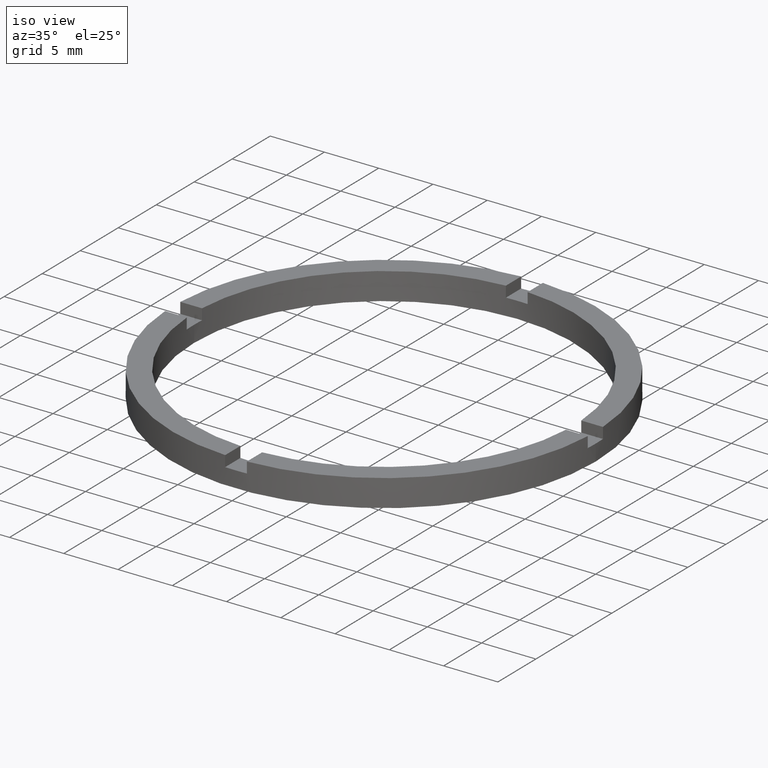
[diagram: clean part render]
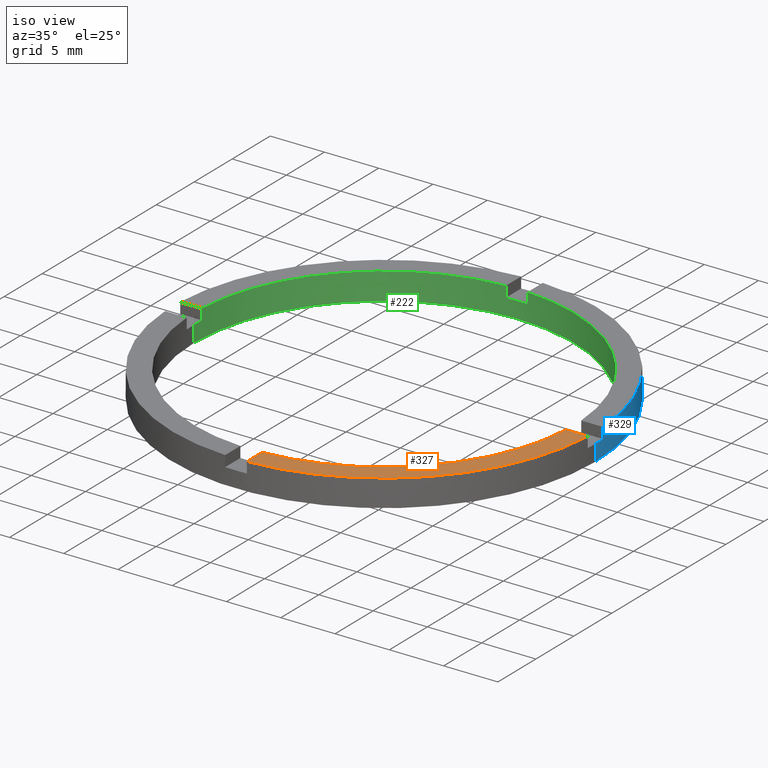
[diagram: same view with three faces highlighted in distinct colors, each labeled with its STEP entity id]
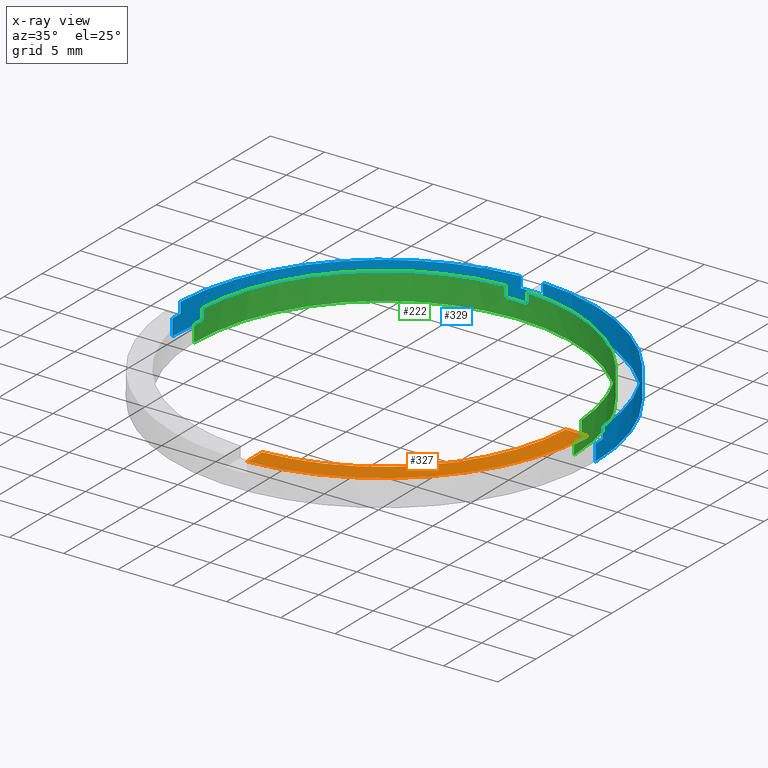
[diagram: x-ray of the same camera — body ghosted, the three highlighted faces saturated]
A machine part, iso view with three faces highlighted in distinct colors.
The next image is the same camera in x-ray (body ghosted, the three faces saturated) — at least one of them is partly hidden behind the body in this view.
Their STEP definitions:

[orange] entity #327 — the highlighted planar face has unit normal (0, 0, 1).
#36 = FACE_OUTER_BOUND ( 'NONE', #448, .T. ) ;
#55 = ORIENTED_EDGE ( 'NONE', *, *, #530, .F. ) ;
#99 = CARTESIAN_POINT ( 'NONE',  ( 17.47140520965614385, -1.000000000000158762, 2.500000000000000000 ) ) ;
#117 = CARTESIAN_POINT ( 'NONE',  ( 0.000000000000000000, 0.000000000000000000, 2.500000000000000000 ) ) ;
#120 = DIRECTION ( 'NONE',  ( 0.000000000000000000, 0.000000000000000000, 1.000000000000000000 ) ) ;
#142 = VECTOR ( 'NONE', #215, 1000.000000000000000 ) ;
#161 = VECTOR ( 'NONE', #230, 1000.000000000000000 ) ;
#163 = CIRCLE ( 'NONE', #752, 19.50000000000000000 ) ;
#178 = VERTEX_POINT ( 'NONE', #756 ) ;
#208 = CARTESIAN_POINT ( 'NONE',  ( 0.9999999999998369082, -9.500000000000179412, 2.500000000000000000 ) ) ;
#215 = DIRECTION ( 'NONE',  ( -1.301042606982605074E-16, 1.000000000000000000, -0.000000000000000000 ) ) ;
#230 = DIRECTION ( 'NONE',  ( 1.000000000000000000, 4.336808689942017120E-17, 0.000000000000000000 ) ) ;
#235 = VERTEX_POINT ( 'NONE', #375 ) ;
#259 = AXIS2_PLACEMENT_3D ( 'NONE', #742, #558, #549 ) ;
#298 = AXIS2_PLACEMENT_3D ( 'NONE', #117, #349, #724 ) ;
#327 = ADVANCED_FACE ( 'NONE', ( #36 ), #605, .T. ) ;
#349 = DIRECTION ( 'NONE',  ( 0.000000000000000000, 0.000000000000000000, 1.000000000000000000 ) ) ;
#352 = CARTESIAN_POINT ( 'NONE',  ( 0.000000000000000000, 0.000000000000000000, 2.500000000000000000 ) ) ;
#358 = VERTEX_POINT ( 'NONE', #664 ) ;
#375 = CARTESIAN_POINT ( 'NONE',  ( 19.47434209415044037, -1.000000000000158540, 2.500000000000000000 ) ) ;
#437 = CIRCLE ( 'NONE', #259, 17.50000000000000355 ) ;
#440 = LINE ( 'NONE', #619, #161 ) ;
#448 = EDGE_LOOP ( 'NONE', ( #472, #55, #706, #646 ) ) ;
#469 = VERTEX_POINT ( 'NONE', #99 ) ;
#472 = ORIENTED_EDGE ( 'NONE', *, *, #587, .F. ) ;
#530 = EDGE_CURVE ( 'NONE', #178, #469, #437, .T. ) ;
#549 = DIRECTION ( 'NONE',  ( 1.000000000000000000, 0.000000000000000000, 0.000000000000000000 ) ) ;
#558 = DIRECTION ( 'NONE',  ( 0.000000000000000000, 0.000000000000000000, 1.000000000000000000 ) ) ;
#587 = EDGE_CURVE ( 'NONE', #469, #235, #440, .T. ) ;
#601 = EDGE_CURVE ( 'NONE', #358, #235, #163, .T. ) ;
#605 = PLANE ( 'NONE',  #298 ) ;
#619 = CARTESIAN_POINT ( 'NONE',  ( 9.499999999999994671, -1.000000000000158984, 2.500000000000000000 ) ) ;
#646 = ORIENTED_EDGE ( 'NONE', *, *, #601, .T. ) ;
#661 = DIRECTION ( 'NONE',  ( 1.000000000000000000, 0.000000000000000000, 0.000000000000000000 ) ) ;
#664 = CARTESIAN_POINT ( 'NONE',  ( 0.9999999999998377964, -19.47434209415045459, 2.500000000000000000 ) ) ;
#665 = LINE ( 'NONE', #208, #142 ) ;
#706 = ORIENTED_EDGE ( 'NONE', *, *, #745, .F. ) ;
#724 = DIRECTION ( 'NONE',  ( 1.000000000000000000, 0.000000000000000000, -0.000000000000000000 ) ) ;
#742 = CARTESIAN_POINT ( 'NONE',  ( 0.000000000000000000, 0.000000000000000000, 2.500000000000000000 ) ) ;
#745 = EDGE_CURVE ( 'NONE', #358, #178, #665, .T. ) ;
#752 = AXIS2_PLACEMENT_3D ( 'NONE', #352, #120, #661 ) ;
#756 = CARTESIAN_POINT ( 'NONE',  ( 0.9999999999998373523, -17.47140520965615806, 2.500000000000000000 ) ) ;

[blue] entity #329 — the highlighted cylindrical surface (partial cylindrical patch) has radius 19.5 mm, axis along (-0, -0, -1).
#1 = DIRECTION ( 'NONE',  ( 1.000000000000000000, 0.000000000000000000, 0.000000000000000000 ) ) ;
#3 = EDGE_CURVE ( 'NONE', #455, #92, #60, .T. ) ;
#8 = CARTESIAN_POINT ( 'NONE',  ( 19.50000000000000000, 2.388061258337338939E-15, 2.500000000000000000 ) ) ;
#9 = DIRECTION ( 'NONE',  ( 1.000000000000000000, 0.000000000000000000, 0.000000000000000000 ) ) ;
#16 = EDGE_CURVE ( 'NONE', #455, #639, #582, .T. ) ;
#24 = CARTESIAN_POINT ( 'NONE',  ( 19.47434209415045459, 0.9999999999998414602, 1.500000000000000000 ) ) ;
#25 = VECTOR ( 'NONE', #529, 1000.000000000000000 ) ;
#29 = AXIS2_PLACEMENT_3D ( 'NONE', #540, #491, #243 ) ;
#39 = LINE ( 'NONE', #74, #292 ) ;
#40 = LINE ( 'NONE', #94, #284 ) ;
#46 = CYLINDRICAL_SURFACE ( 'NONE', #452, 19.50000000000000000 ) ;
#50 = EDGE_CURVE ( 'NONE', #381, #517, #566, .T. ) ;
#53 = CARTESIAN_POINT ( 'NONE',  ( 0.9999999999999742428, 19.47434209415044393, 1.500000000000000000 ) ) ;
#60 = LINE ( 'NONE', #493, #317 ) ;
#62 = CARTESIAN_POINT ( 'NONE',  ( 0.000000000000000000, 0.000000000000000000, 1.500000000000000000 ) ) ;
#66 = CARTESIAN_POINT ( 'NONE',  ( 0.9999999999999742428, 19.47434209415044393, 2.500000000000000000 ) ) ;
#72 = DIRECTION ( 'NONE',  ( 1.000000000000000000, 0.000000000000000000, 0.000000000000000000 ) ) ;
#74 = CARTESIAN_POINT ( 'NONE',  ( -19.47434209415044748, 0.9999999999999756861, 2.500000000000000000 ) ) ;
#89 = DIRECTION ( 'NONE',  ( -0.000000000000000000, -0.000000000000000000, -1.000000000000000000 ) ) ;
#92 = VERTEX_POINT ( 'NONE', #394 ) ;
#94 = CARTESIAN_POINT ( 'NONE',  ( -19.50000000000000000, 0.000000000000000000, 2.500000000000000000 ) ) ;
#98 = EDGE_CURVE ( 'NONE', #212, #630, #562, .T. ) ;
#110 = EDGE_CURVE ( 'NONE', #254, #525, #286, .T. ) ;
#121 = CARTESIAN_POINT ( 'NONE',  ( -19.47434209415044748, 0.9999999999999756861, 1.500000000000000000 ) ) ;
#125 = AXIS2_PLACEMENT_3D ( 'NONE', #312, #391, #72 ) ;
#137 = ORIENTED_EDGE ( 'NONE', *, *, #485, .F. ) ;
#171 = CIRCLE ( 'NONE', #471, 19.50000000000000000 ) ;
#185 = DIRECTION ( 'NONE',  ( 0.000000000000000000, 0.000000000000000000, 1.000000000000000000 ) ) ;
#190 = ORIENTED_EDGE ( 'NONE', *, *, #3, .T. ) ;
#207 = ORIENTED_EDGE ( 'NONE', *, *, #221, .T. ) ;
#212 = VERTEX_POINT ( 'NONE', #368 ) ;
#221 = EDGE_CURVE ( 'NONE', #381, #639, #39, .T. ) ;
#225 = DIRECTION ( 'NONE',  ( -0.000000000000000000, -0.000000000000000000, -1.000000000000000000 ) ) ;
#229 = CARTESIAN_POINT ( 'NONE',  ( 0.000000000000000000, 0.000000000000000000, 2.500000000000000000 ) ) ;
#232 = DIRECTION ( 'NONE',  ( -0.000000000000000000, -0.000000000000000000, -1.000000000000000000 ) ) ;
#236 = EDGE_CURVE ( 'NONE', #715, #720, #564, .T. ) ;
#243 = DIRECTION ( 'NONE',  ( 1.000000000000000000, 0.000000000000000000, 0.000000000000000000 ) ) ;
#254 = VERTEX_POINT ( 'NONE', #53 ) ;
#255 = DIRECTION ( 'NONE',  ( 0.000000000000000000, 0.000000000000000000, 1.000000000000000000 ) ) ;
#284 = VECTOR ( 'NONE', #225, 1000.000000000000000 ) ;
#286 = LINE ( 'NONE', #590, #25 ) ;
#292 = VECTOR ( 'NONE', #607, 1000.000000000000000 ) ;
#299 = FACE_OUTER_BOUND ( 'NONE', #362, .T. ) ;
#312 = CARTESIAN_POINT ( 'NONE',  ( 0.000000000000000000, 0.000000000000000000, 2.500000000000000000 ) ) ;
#316 = CARTESIAN_POINT ( 'NONE',  ( -19.47434209415044748, 0.9999999999999756861, 2.500000000000000000 ) ) ;
#317 = VECTOR ( 'NONE', #89, 1000.000000000000000 ) ;
#321 = CARTESIAN_POINT ( 'NONE',  ( -19.50000000000000000, 0.000000000000000000, 0.000000000000000000 ) ) ;
#325 = EDGE_CURVE ( 'NONE', #517, #657, #40, .T. ) ;
#329 = ADVANCED_FACE ( 'NONE', ( #299 ), #46, .T. ) ;
#333 = DIRECTION ( 'NONE',  ( -0.000000000000000000, -0.000000000000000000, -1.000000000000000000 ) ) ;
#340 = CARTESIAN_POINT ( 'NONE',  ( 19.50000000000000000, 2.388061258337338939E-15, 0.000000000000000000 ) ) ;
#343 = DIRECTION ( 'NONE',  ( -1.000000000000000000, 0.000000000000000000, 0.000000000000000000 ) ) ;
#362 = EDGE_LOOP ( 'NONE', ( #637, #683, #687, #773, #371, #207, #470, #190, #723, #693, #137, #466 ) ) ;
#365 = DIRECTION ( 'NONE',  ( -0.000000000000000000, -0.000000000000000000, -1.000000000000000000 ) ) ;
#368 = CARTESIAN_POINT ( 'NONE',  ( 19.50000000000000000, 2.388061258337338939E-15, 1.500000000000000000 ) ) ;
#371 = ORIENTED_EDGE ( 'NONE', *, *, #50, .F. ) ;
#381 = VERTEX_POINT ( 'NONE', #121 ) ;
#391 = DIRECTION ( 'NONE',  ( 0.000000000000000000, 0.000000000000000000, 1.000000000000000000 ) ) ;
#394 = CARTESIAN_POINT ( 'NONE',  ( -1.000000000000024869, 19.47434209415044393, 1.500000000000000000 ) ) ;
#410 = CIRCLE ( 'NONE', #29, 19.50000000000000000 ) ;
#412 = CARTESIAN_POINT ( 'NONE',  ( 0.000000000000000000, 0.000000000000000000, 2.500000000000000000 ) ) ;
#414 = CIRCLE ( 'NONE', #655, 19.50000000000000000 ) ;
#427 = CARTESIAN_POINT ( 'NONE',  ( -19.50000000000000000, 0.000000000000000000, 1.500000000000000000 ) ) ;
#452 = AXIS2_PLACEMENT_3D ( 'NONE', #229, #232, #343 ) ;
#454 = DIRECTION ( 'NONE',  ( 0.000000000000000000, 0.000000000000000000, 1.000000000000000000 ) ) ;
#455 = VERTEX_POINT ( 'NONE', #473 ) ;
#466 = ORIENTED_EDGE ( 'NONE', *, *, #236, .T. ) ;
#470 = ORIENTED_EDGE ( 'NONE', *, *, #16, .F. ) ;
#471 = AXIS2_PLACEMENT_3D ( 'NONE', #546, #454, #1 ) ;
#473 = CARTESIAN_POINT ( 'NONE',  ( -1.000000000000024869, 19.47434209415044393, 2.500000000000000000 ) ) ;
#474 = CARTESIAN_POINT ( 'NONE',  ( 19.47434209415045459, 0.9999999999998414602, 2.500000000000000000 ) ) ;
#485 = EDGE_CURVE ( 'NONE', #715, #525, #414, .T. ) ;
#491 = DIRECTION ( 'NONE',  ( 0.000000000000000000, -0.000000000000000000, 1.000000000000000000 ) ) ;
#493 = CARTESIAN_POINT ( 'NONE',  ( -1.000000000000025313, 19.47434209415044748, 2.500000000000000000 ) ) ;
#494 = DIRECTION ( 'NONE',  ( 0.000000000000000000, 0.000000000000000000, 1.000000000000000000 ) ) ;
#509 = EDGE_CURVE ( 'NONE', #254, #92, #410, .T. ) ;
#517 = VERTEX_POINT ( 'NONE', #427 ) ;
#525 = VERTEX_POINT ( 'NONE', #66 ) ;
#529 = DIRECTION ( 'NONE',  ( 0.000000000000000000, 0.000000000000000000, 1.000000000000000000 ) ) ;
#531 = DIRECTION ( 'NONE',  ( 1.000000000000000000, 0.000000000000000000, 0.000000000000000000 ) ) ;
#539 = VECTOR ( 'NONE', #333, 1000.000000000000000 ) ;
#540 = CARTESIAN_POINT ( 'NONE',  ( 0.000000000000000000, 0.000000000000000000, 1.500000000000000000 ) ) ;
#546 = CARTESIAN_POINT ( 'NONE',  ( 0.000000000000000000, 0.000000000000000000, 0.000000000000000000 ) ) ;
#562 = LINE ( 'NONE', #8, #567 ) ;
#564 = LINE ( 'NONE', #474, #539 ) ;
#566 = CIRCLE ( 'NONE', #593, 19.50000000000000000 ) ;
#567 = VECTOR ( 'NONE', #365, 1000.000000000000000 ) ;
#570 = CARTESIAN_POINT ( 'NONE',  ( 19.47434209415045459, 0.9999999999998414602, 2.500000000000000000 ) ) ;
#582 = CIRCLE ( 'NONE', #125, 19.50000000000000000 ) ;
#590 = CARTESIAN_POINT ( 'NONE',  ( 0.9999999999999746869, 19.47434209415044748, 2.500000000000000000 ) ) ;
#593 = AXIS2_PLACEMENT_3D ( 'NONE', #642, #255, #603 ) ;
#603 = DIRECTION ( 'NONE',  ( 1.000000000000000000, 0.000000000000000000, 0.000000000000000000 ) ) ;
#606 = AXIS2_PLACEMENT_3D ( 'NONE', #62, #494, #9 ) ;
#607 = DIRECTION ( 'NONE',  ( 0.000000000000000000, 0.000000000000000000, 1.000000000000000000 ) ) ;
#630 = VERTEX_POINT ( 'NONE', #340 ) ;
#637 = ORIENTED_EDGE ( 'NONE', *, *, #729, .F. ) ;
#639 = VERTEX_POINT ( 'NONE', #316 ) ;
#642 = CARTESIAN_POINT ( 'NONE',  ( 0.000000000000000000, 0.000000000000000000, 1.500000000000000000 ) ) ;
#655 = AXIS2_PLACEMENT_3D ( 'NONE', #412, #185, #531 ) ;
#657 = VERTEX_POINT ( 'NONE', #321 ) ;
#663 = CIRCLE ( 'NONE', #606, 19.50000000000000000 ) ;
#683 = ORIENTED_EDGE ( 'NONE', *, *, #98, .T. ) ;
#687 = ORIENTED_EDGE ( 'NONE', *, *, #708, .T. ) ;
#693 = ORIENTED_EDGE ( 'NONE', *, *, #110, .T. ) ;
#708 = EDGE_CURVE ( 'NONE', #630, #657, #171, .T. ) ;
#715 = VERTEX_POINT ( 'NONE', #570 ) ;
#720 = VERTEX_POINT ( 'NONE', #24 ) ;
#723 = ORIENTED_EDGE ( 'NONE', *, *, #509, .F. ) ;
#729 = EDGE_CURVE ( 'NONE', #212, #720, #663, .T. ) ;
#773 = ORIENTED_EDGE ( 'NONE', *, *, #325, .F. ) ;

[green] entity #222 — the highlighted cylindrical surface (partial cylindrical patch) has radius 17.5 mm, axis along (-0, -0, -1).
#10 = DIRECTION ( 'NONE',  ( 0.000000000000000000, 0.000000000000000000, 1.000000000000000000 ) ) ;
#12 = CARTESIAN_POINT ( 'NONE',  ( 0.000000000000000000, 0.000000000000000000, 2.500000000000000000 ) ) ;
#17 = AXIS2_PLACEMENT_3D ( 'NONE', #35, #449, #145 ) ;
#18 = DIRECTION ( 'NONE',  ( 0.000000000000000000, 0.000000000000000000, 1.000000000000000000 ) ) ;
#33 = VECTOR ( 'NONE', #668, 1000.000000000000000 ) ;
#35 = CARTESIAN_POINT ( 'NONE',  ( 0.000000000000000000, 0.000000000000000000, 2.500000000000000000 ) ) ;
#49 = VECTOR ( 'NONE', #740, 1000.000000000000000 ) ;
#51 = CIRCLE ( 'NONE', #17, 17.50000000000000355 ) ;
#58 = DIRECTION ( 'NONE',  ( 1.000000000000000000, 0.000000000000000000, 0.000000000000000000 ) ) ;
#61 = DIRECTION ( 'NONE',  ( 1.000000000000000000, 0.000000000000000000, 0.000000000000000000 ) ) ;
#75 = DIRECTION ( 'NONE',  ( 1.000000000000000000, 0.000000000000000000, 0.000000000000000000 ) ) ;
#95 = EDGE_CURVE ( 'NONE', #372, #250, #555, .T. ) ;
#119 = VERTEX_POINT ( 'NONE', #775 ) ;
#124 = DIRECTION ( 'NONE',  ( 1.000000000000000000, 0.000000000000000000, 0.000000000000000000 ) ) ;
#136 = DIRECTION ( 'NONE',  ( -0.000000000000000000, -0.000000000000000000, -1.000000000000000000 ) ) ;
#145 = DIRECTION ( 'NONE',  ( 1.000000000000000000, 0.000000000000000000, 0.000000000000000000 ) ) ;
#149 = CIRCLE ( 'NONE', #677, 17.50000000000000355 ) ;
#160 = CIRCLE ( 'NONE', #166, 17.50000000000000355 ) ;
#166 = AXIS2_PLACEMENT_3D ( 'NONE', #483, #400, #58 ) ;
#169 = VECTOR ( 'NONE', #721, 1000.000000000000000 ) ;
#173 = VERTEX_POINT ( 'NONE', #518 ) ;
#180 = ORIENTED_EDGE ( 'NONE', *, *, #338, .T. ) ;
#183 = AXIS2_PLACEMENT_3D ( 'NONE', #536, #201, #682 ) ;
#188 = CARTESIAN_POINT ( 'NONE',  ( 0.000000000000000000, 0.000000000000000000, 1.500000000000000000 ) ) ;
#191 = CARTESIAN_POINT ( 'NONE',  ( -17.50000000000000355, 0.000000000000000000, 0.000000000000000000 ) ) ;
#193 = DIRECTION ( 'NONE',  ( -0.000000000000000000, -0.000000000000000000, -1.000000000000000000 ) ) ;
#194 = CARTESIAN_POINT ( 'NONE',  ( 0.9999999999999742428, 17.47140520965614741, 1.500000000000000000 ) ) ;
#199 = ORIENTED_EDGE ( 'NONE', *, *, #714, .F. ) ;
#201 = DIRECTION ( 'NONE',  ( 0.000000000000000000, 0.000000000000000000, 1.000000000000000000 ) ) ;
#204 = VERTEX_POINT ( 'NONE', #205 ) ;
#205 = CARTESIAN_POINT ( 'NONE',  ( -17.50000000000000355, 0.000000000000000000, 1.500000000000000000 ) ) ;
#213 = EDGE_CURVE ( 'NONE', #347, #725, #51, .T. ) ;
#217 = VERTEX_POINT ( 'NONE', #268 ) ;
#222 = ADVANCED_FACE ( 'NONE', ( #305 ), #293, .F. ) ;
#223 = AXIS2_PLACEMENT_3D ( 'NONE', #314, #508, #75 ) ;
#224 = CARTESIAN_POINT ( 'NONE',  ( -1.000000000000024869, 17.47140520965614741, 1.500000000000000000 ) ) ;
#241 = ORIENTED_EDGE ( 'NONE', *, *, #519, .F. ) ;
#242 = CARTESIAN_POINT ( 'NONE',  ( -1.000000000000024869, 17.47140520965614741, 2.500000000000000000 ) ) ;
#247 = VERTEX_POINT ( 'NONE', #467 ) ;
#250 = VERTEX_POINT ( 'NONE', #224 ) ;
#268 = CARTESIAN_POINT ( 'NONE',  ( 17.50000000000000355, 2.143131898507868643E-15, 1.500000000000000000 ) ) ;
#273 = EDGE_CURVE ( 'NONE', #217, #247, #552, .T. ) ;
#293 = CYLINDRICAL_SURFACE ( 'NONE', #612, 17.50000000000000355 ) ;
#305 = FACE_OUTER_BOUND ( 'NONE', #635, .T. ) ;
#306 = CARTESIAN_POINT ( 'NONE',  ( -17.47140520965615096, 0.9999999999999761302, 1.500000000000000000 ) ) ;
#314 = CARTESIAN_POINT ( 'NONE',  ( 0.000000000000000000, 0.000000000000000000, 2.500000000000000000 ) ) ;
#338 = EDGE_CURVE ( 'NONE', #204, #379, #534, .T. ) ;
#339 = DIRECTION ( 'NONE',  ( 0.000000000000000000, 0.000000000000000000, 1.000000000000000000 ) ) ;
#342 = ORIENTED_EDGE ( 'NONE', *, *, #782, .F. ) ;
#347 = VERTEX_POINT ( 'NONE', #425 ) ;
#356 = CARTESIAN_POINT ( 'NONE',  ( 0.9999999999999742428, 17.47140520965614741, 2.500000000000000000 ) ) ;
#366 = VERTEX_POINT ( 'NONE', #194 ) ;
#372 = VERTEX_POINT ( 'NONE', #242 ) ;
#379 = VERTEX_POINT ( 'NONE', #191 ) ;
#395 = AXIS2_PLACEMENT_3D ( 'NONE', #188, #10, #61 ) ;
#400 = DIRECTION ( 'NONE',  ( 0.000000000000000000, -0.000000000000000000, 1.000000000000000000 ) ) ;
#401 = LINE ( 'NONE', #553, #671 ) ;
#402 = VECTOR ( 'NONE', #416, 1000.000000000000000 ) ;
#408 = LINE ( 'NONE', #654, #169 ) ;
#416 = DIRECTION ( 'NONE',  ( 0.000000000000000000, 0.000000000000000000, 1.000000000000000000 ) ) ;
#425 = CARTESIAN_POINT ( 'NONE',  ( 17.47140520965616162, 0.9999999999998412381, 2.500000000000000000 ) ) ;
#432 = VECTOR ( 'NONE', #339, 1000.000000000000000 ) ;
#434 = LINE ( 'NONE', #658, #402 ) ;
#435 = EDGE_CURVE ( 'NONE', #217, #173, #408, .T. ) ;
#439 = ORIENTED_EDGE ( 'NONE', *, *, #435, .F. ) ;
#449 = DIRECTION ( 'NONE',  ( 0.000000000000000000, 0.000000000000000000, 1.000000000000000000 ) ) ;
#460 = EDGE_CURVE ( 'NONE', #366, #250, #160, .T. ) ;
#467 = CARTESIAN_POINT ( 'NONE',  ( 17.47140520965616162, 0.9999999999998412381, 1.500000000000000000 ) ) ;
#483 = CARTESIAN_POINT ( 'NONE',  ( 0.000000000000000000, 0.000000000000000000, 1.500000000000000000 ) ) ;
#487 = CARTESIAN_POINT ( 'NONE',  ( -17.47140520965615096, 0.9999999999999761302, 2.500000000000000000 ) ) ;
#499 = ORIENTED_EDGE ( 'NONE', *, *, #213, .T. ) ;
#503 = DIRECTION ( 'NONE',  ( -1.000000000000000000, 0.000000000000000000, 0.000000000000000000 ) ) ;
#507 = ORIENTED_EDGE ( 'NONE', *, *, #754, .T. ) ;
#508 = DIRECTION ( 'NONE',  ( 0.000000000000000000, 0.000000000000000000, 1.000000000000000000 ) ) ;
#518 = CARTESIAN_POINT ( 'NONE',  ( 17.50000000000000355, 2.143131898507868643E-15, 0.000000000000000000 ) ) ;
#519 = EDGE_CURVE ( 'NONE', #705, #119, #685, .T. ) ;
#534 = LINE ( 'NONE', #659, #49 ) ;
#536 = CARTESIAN_POINT ( 'NONE',  ( 0.000000000000000000, 0.000000000000000000, 0.000000000000000000 ) ) ;
#552 = CIRCLE ( 'NONE', #395, 17.50000000000000355 ) ;
#553 = CARTESIAN_POINT ( 'NONE',  ( 17.47140520965616162, 0.9999999999998412381, 2.500000000000000000 ) ) ;
#555 = LINE ( 'NONE', #589, #33 ) ;
#589 = CARTESIAN_POINT ( 'NONE',  ( -1.000000000000025313, 17.47140520965615096, 2.500000000000000000 ) ) ;
#604 = CARTESIAN_POINT ( 'NONE',  ( 0.000000000000000000, 0.000000000000000000, 1.500000000000000000 ) ) ;
#612 = AXIS2_PLACEMENT_3D ( 'NONE', #12, #136, #503 ) ;
#615 = ORIENTED_EDGE ( 'NONE', *, *, #273, .T. ) ;
#629 = ORIENTED_EDGE ( 'NONE', *, *, #460, .T. ) ;
#635 = EDGE_LOOP ( 'NONE', ( #439, #615, #768, #499, #199, #629, #641, #762, #241, #507, #180, #342 ) ) ;
#641 = ORIENTED_EDGE ( 'NONE', *, *, #95, .F. ) ;
#654 = CARTESIAN_POINT ( 'NONE',  ( 17.50000000000000355, 2.143131898507868643E-15, 2.500000000000000000 ) ) ;
#658 = CARTESIAN_POINT ( 'NONE',  ( 0.9999999999999746869, 17.47140520965615096, 2.500000000000000000 ) ) ;
#659 = CARTESIAN_POINT ( 'NONE',  ( -17.50000000000000355, 0.000000000000000000, 2.500000000000000000 ) ) ;
#668 = DIRECTION ( 'NONE',  ( -0.000000000000000000, -0.000000000000000000, -1.000000000000000000 ) ) ;
#671 = VECTOR ( 'NONE', #193, 1000.000000000000000 ) ;
#677 = AXIS2_PLACEMENT_3D ( 'NONE', #604, #18, #124 ) ;
#682 = DIRECTION ( 'NONE',  ( 1.000000000000000000, 0.000000000000000000, 0.000000000000000000 ) ) ;
#685 = LINE ( 'NONE', #487, #432 ) ;
#692 = CIRCLE ( 'NONE', #223, 17.50000000000000355 ) ;
#701 = CIRCLE ( 'NONE', #183, 17.50000000000000355 ) ;
#705 = VERTEX_POINT ( 'NONE', #306 ) ;
#707 = EDGE_CURVE ( 'NONE', #372, #119, #692, .T. ) ;
#714 = EDGE_CURVE ( 'NONE', #366, #725, #434, .T. ) ;
#721 = DIRECTION ( 'NONE',  ( -0.000000000000000000, -0.000000000000000000, -1.000000000000000000 ) ) ;
#725 = VERTEX_POINT ( 'NONE', #356 ) ;
#740 = DIRECTION ( 'NONE',  ( -0.000000000000000000, -0.000000000000000000, -1.000000000000000000 ) ) ;
#750 = EDGE_CURVE ( 'NONE', #347, #247, #401, .T. ) ;
#754 = EDGE_CURVE ( 'NONE', #705, #204, #149, .T. ) ;
#762 = ORIENTED_EDGE ( 'NONE', *, *, #707, .T. ) ;
#768 = ORIENTED_EDGE ( 'NONE', *, *, #750, .F. ) ;
#775 = CARTESIAN_POINT ( 'NONE',  ( -17.47140520965615096, 0.9999999999999761302, 2.500000000000000000 ) ) ;
#782 = EDGE_CURVE ( 'NONE', #173, #379, #701, .T. ) ;